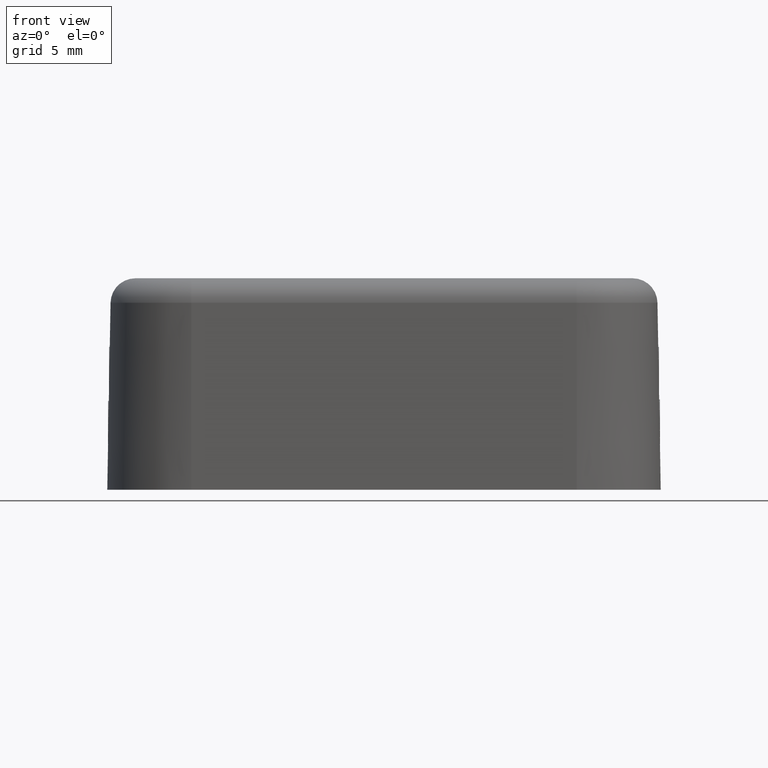
[diagram: clean part render]
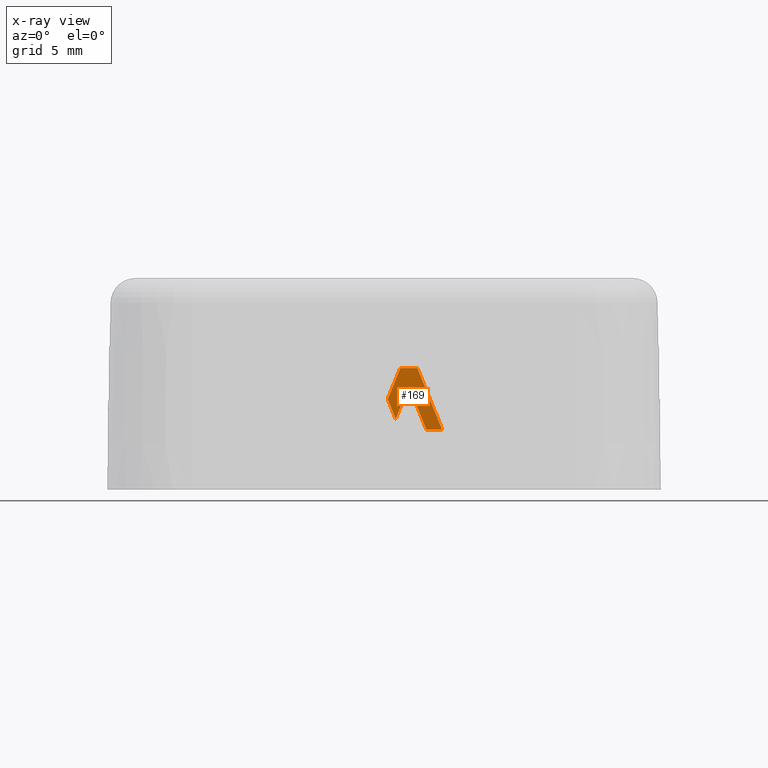
[diagram: x-ray — body ghosted, one internal face saturated and labeled with its STEP entity id]
A machine part, front view, then the same camera in x-ray: the body is ghosted and one INTERNAL B-rep face — a face not visible from any outside direction — is saturated and labeled: STEP entity #169.
In plain terms, the highlighted planar face has unit normal (-0, -0.9998, -0.0175).
Its self-contained STEP definition (entity closure, byte-faithful):
#169=ADVANCED_FACE('',(#379),#380,.T.);
#379=FACE_OUTER_BOUND('',#758,.T.);
#380=PLANE('',#759);
#758=EDGE_LOOP('',(#1286,#1287,#1288,#1289,#1290,#1291,#1292));
#759=AXIS2_PLACEMENT_3D('',#1293,#1294,#1295);
#1286=ORIENTED_EDGE('',*,*,#2848,.T.);
#1287=ORIENTED_EDGE('',*,*,#2849,.T.);
#1288=ORIENTED_EDGE('',*,*,#2850,.T.);
#1289=ORIENTED_EDGE('',*,*,#2841,.F.);
#1290=ORIENTED_EDGE('',*,*,#2851,.T.);
#1291=ORIENTED_EDGE('',*,*,#2836,.T.);
#1292=ORIENTED_EDGE('',*,*,#2846,.T.);
#1293=CARTESIAN_POINT('',(-111.56788675131,-1.50295750366624,329.426501254397));
#1294=DIRECTION('',(-6.12230139754067E-17,-0.999847695156391,-0.0174524064372837));
#1295=DIRECTION('',(1.06865168404191E-18,0.0174524064372837,-0.999847695156391));
#2836=EDGE_CURVE('',#3304,#3305,#3306,.T.);
#2841=EDGE_CURVE('',#3312,#3314,#3315,.T.);
#2846=EDGE_CURVE('',#3305,#3323,#3324,.T.);
#2848=EDGE_CURVE('',#3323,#3326,#3327,.T.);
#2849=EDGE_CURVE('',#3326,#3328,#3329,.T.);
#2850=EDGE_CURVE('',#3328,#3314,#3330,.T.);
#2851=EDGE_CURVE('',#3312,#3304,#3331,.T.);
#3304=VERTEX_POINT('',#4061);
#3305=VERTEX_POINT('',#4062);
#3306=LINE('',#4063,#4064);
#3312=VERTEX_POINT('',#4073);
#3314=VERTEX_POINT('',#4076);
#3315=LINE('',#4077,#4078);
#3323=VERTEX_POINT('',#4090);
#3324=LINE('',#4091,#4092);
#3326=VERTEX_POINT('',#4095);
#3327=LINE('',#4096,#4097);
#3328=VERTEX_POINT('',#4098);
#3329=LINE('',#4099,#4100);
#3330=LINE('',#4101,#4102);
#3331=LINE('',#4103,#4104);
#4061=CARTESIAN_POINT('',(2.68172727499697,4.0765137923283,9.77880478694816));
#4062=CARTESIAN_POINT('',(1.31837740664049,4.0765137923283,9.77880478694816));
#4063=CARTESIAN_POINT('',(1.31837740599698,4.0765137923283,9.77880478694816));
#4064=VECTOR('',#5742,1000.0);
#4073=CARTESIAN_POINT('',(4.66863420936477,4.16277043290482,4.83716515792126));
#4076=CARTESIAN_POINT('',(3.39591904255871,4.16277043290482,4.83716515792126));
#4077=CARTESIAN_POINT('',(-112.072146759354,4.16277043290483,4.83716515792126));
#4078=VECTOR('',#5747,1000.0);
#4090=CARTESIAN_POINT('',(0.295704713996992,4.12005652225886,7.28424345992802));
#4091=CARTESIAN_POINT('',(0.28438667345097,4.12053841483929,7.25663585248542));
#4092=VECTOR('',#5752,1000.0);
#4095=CARTESIAN_POINT('',(0.938237372756068,4.14808660523863,5.67840108150971));
#4096=CARTESIAN_POINT('',(0.94919094925638,4.14856444812186,5.6510254810641));
#4097=VECTOR('',#5754,1000.0);
#4098=CARTESIAN_POINT('',(2.00005234029435,4.10228311625046,8.30248120819714));
#4099=CARTESIAN_POINT('',(1.98873170317757,4.10277145435282,8.27450433705027));
#4100=VECTOR('',#5755,1000.0);
#4101=CARTESIAN_POINT('',(3.40823996353148,4.16330433735798,4.80657779228537));
#4102=VECTOR('',#5756,1000.0);
#4103=CARTESIAN_POINT('',(2.69315176276996,4.07700975815265,9.75039092390112));
#4104=VECTOR('',#5757,1000.0);
#5742=DIRECTION('',(-1.0,6.12323399573677E-17,-5.28056596174308E-33));
#5747=DIRECTION('',(-1.0,6.12323399573677E-17,0.0));
#5752=DIRECTION('',(-0.379272875091809,0.0161484475797181,-0.925143942238373));
#5754=DIRECTION('',(0.37143944514135,0.016203812097865,-0.928315773358712));
#5755=DIRECTION('',(0.37504874781898,-0.01617846959892,0.926863902566527));
#5756=DIRECTION('',(0.373588227817843,0.0161887588533362,-0.927453373557244));
#5757=DIRECTION('',(-0.373000378097192,-0.0161928870406163,0.927689877248125));